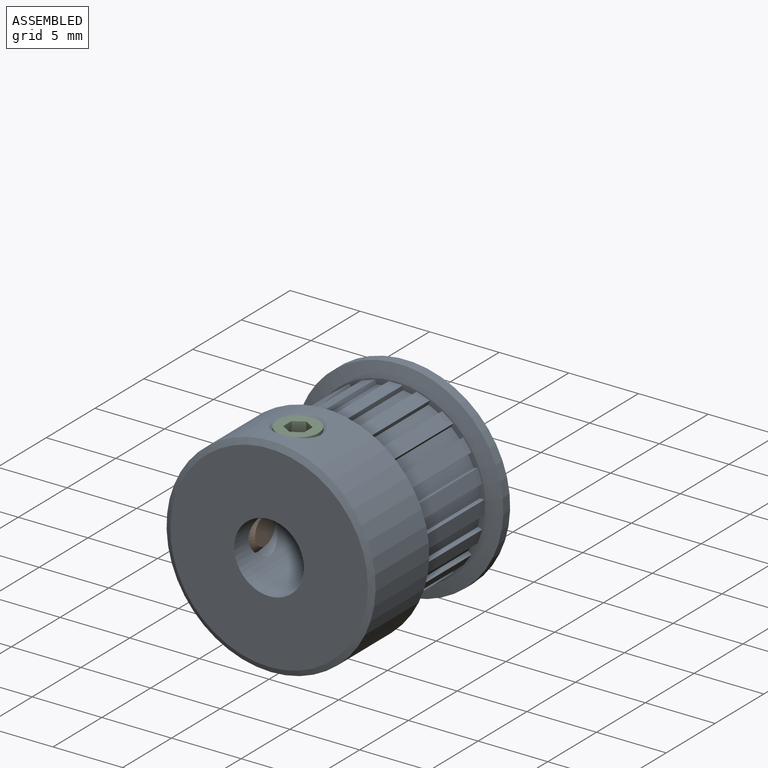
[diagram: assembled view]
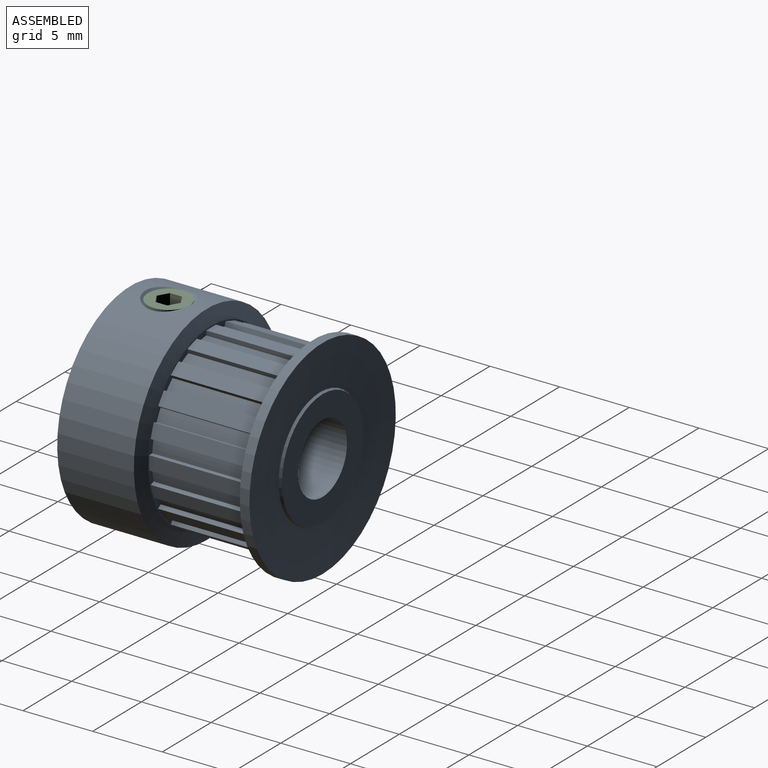
[diagram: assembled view, second angle]
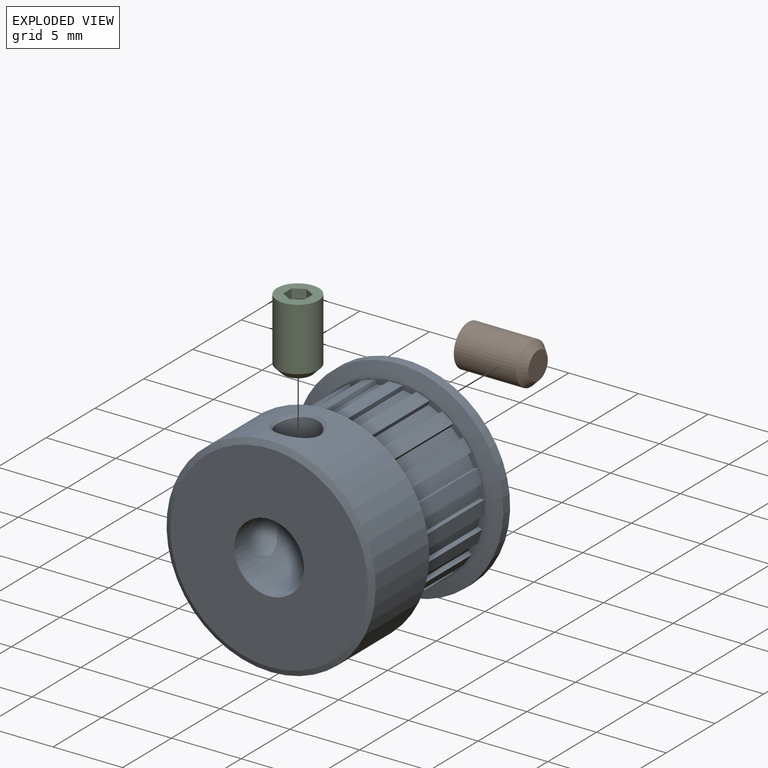
[diagram: exploded view]
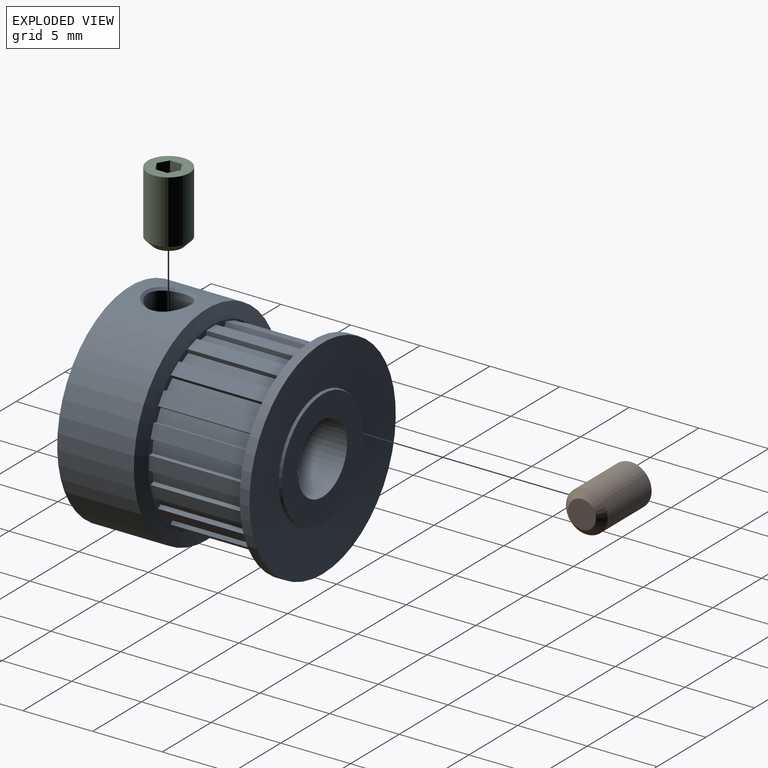
[diagram: exploded view, second angle]
ASSEMBLY  parts=3 mates=2
PART A: 96 faces, bbox 15x14x15 mm
  f0: plane 12.92x12.92mm, normal (0,-1,0), area 9.9mm2, adj f1,f2,f3,f4,f5,f6,f7,f8
  f1: cylinder r=6.05mm len=7mm, axis (0,-1,0), area 6.3mm2, adj f0,f25,f91,f93
  f2: cylinder r=6.05mm len=7mm, axis (0,-1,0), area 6.3mm2, adj f0,f25,f88,f90
  f3: cylinder r=6.05mm len=7mm, axis (0,-1,0), area 6.3mm2, adj f0,f25,f85,f87
  f4: cylinder r=6.05mm len=7mm, axis (0,-1,0), area 6.3mm2, adj f0,f25,f82,f84
  f5: cylinder r=6.05mm len=7mm, axis (0,-1,0), area 6.3mm2, adj f0,f25,f79,f81
  f6: cylinder r=6.05mm len=7mm, axis (0,-1,0), area 6.3mm2, adj f0,f25,f76,f78
  f7: cylinder r=6.05mm len=7mm, axis (0,-1,0), area 6.3mm2, adj f0,f25,f73,f75
  f8: cylinder r=6.05mm len=7mm, axis (0,-1,0), area 6.3mm2, adj f0,f25,f70,f72
  f9: cylinder r=6.05mm len=7mm, axis (0,-1,0), area 6.3mm2, adj f0,f25,f67,f69
  f10: cylinder r=6.05mm len=7mm, axis (0,-1,0), area 6.3mm2, adj f0,f25,f64,f66
  f11: cylinder r=6.05mm len=7mm, axis (0,-1,0), area 6.3mm2, adj f0,f25,f61,f63
  f12: cylinder r=6.05mm len=7mm, axis (0,-1,0), area 6.3mm2, adj f0,f25,f58,f60
  f13: cylinder r=6.05mm len=7mm, axis (0,-1,0), area 6.3mm2, adj f0,f25,f55,f57
  f14: cylinder r=6.05mm len=7mm, axis (0,-1,0), area 6.3mm2, adj f0,f25,f52,f54
  f15: cylinder r=6.05mm len=7mm, axis (0,-1,0), area 6.3mm2, adj f0,f25,f49,f51
  f16: cylinder r=6.05mm len=7mm, axis (0,-1,0), area 6.3mm2, adj f0,f25,f46,f48
  f17: cylinder r=6.05mm len=7mm, axis (0,-1,0), area 6.3mm2, adj f0,f25,f43,f45
  f18: cylinder r=6.05mm len=7mm, axis (0,-1,0), area 6.3mm2, adj f0,f25,f40,f42
  f19: cylinder r=6.05mm len=7mm, axis (0,-1,0), area 6.3mm2, adj f0,f25,f37,f39
  f20: cylinder r=6.05mm len=7mm, axis (0,-1,0), area 6.3mm2, adj f0,f25,f36,f94
  f21: cylinder r=7.5mm len=15mm, axis (0,-1,0), area 241.2mm2, adj f23,f24,f34,f35
  f22: plane 14.18x14.18mm, normal (0,-1,0), area 138.2mm2, adj f23,f31
  f23: cone r=7.5mm half-angle=63.4deg, axis (0,1,0), area 21.1mm2, adj f21,f22
  f24: cone r=7.5mm half-angle=74.3deg, axis (0,-1,0), area 47.4mm2, adj f21,f25
  f25: plane 12.92x12.92mm, normal (0,1,0), area 9.9mm2, adj f1,f2,f3,f4,f5,f6,f7,f8
  f26: cone r=7.5mm half-angle=73.9deg, axis (0,1,0), area 47.5mm2, adj f0,f27
  f27: cylinder r=7.5mm len=15mm, axis (0,-1,0), area 33mm2, adj f26,f28
  f28: cone r=4.25mm half-angle=86.8deg, axis (0,1,0), area 120.2mm2, adj f27,f29
  f29: cone r=4.17mm half-angle=23.1deg, axis (0,-1,0), area 5.3mm2, adj f28,f30
  f30: plane 8.34x8.34mm, normal (0,1,0), area 35mm2, adj f29,f31
  f31: cylinder r=2.5mm len=14mm, axis (0,-1,0), area 205.1mm2, adj f22,f30,f32,f33
  f32: cylinder r=1.5mm len=5.15mm, axis (0,0,-1), area 48.5mm2, adj f31,f34
  f33: cylinder r=1.5mm len=5.15mm, axis (1,0,0), area 48.5mm2, adj f31,f35
  f34: bspline ~3.4x3.33mm, area 2.4mm2, adj f21,f32
  f35: bspline ~3.4x3.33mm, area 2.4mm2, adj f21,f33
  f36: plane 7x0.32mm, normal (-1,0,0), area 2.3mm2, adj f0,f20,f25,f38
  f37: plane 7x0.32mm, normal (1,0,0), area 2.3mm2, adj f0,f19,f25,f38
  f38: plane 7x1mm, normal (0,0,1), area 7mm2, adj f0,f25,f36,f37
  f39: plane 7x0.31mm, normal (-0.95,0,0.31), area 2.3mm2, adj f0,f19,f25,f41
  f40: plane 7x0.31mm, normal (0.95,0,-0.31), area 2.3mm2, adj f0,f18,f25,f41
  f41: plane 7x0.95mm, normal (0.31,0,0.95), area 7mm2, adj f0,f25,f39,f40
  f42: plane 7x0.26mm, normal (-0.81,0,0.59), area 2.3mm2, adj f0,f18,f25,f44
  f43: plane 7x0.26mm, normal (0.81,0,-0.59), area 2.3mm2, adj f0,f17,f25,f44
  f44: plane 7x0.81mm, normal (0.59,0,0.81), area 7mm2, adj f0,f25,f42,f43
  f45: plane 7x0.26mm, normal (-0.59,0,0.81), area 2.3mm2, adj f0,f17,f25,f47
  f46: plane 7x0.26mm, normal (0.59,0,-0.81), area 2.3mm2, adj f0,f16,f25,f47
  f47: plane 7x0.81mm, normal (0.81,0,0.59), area 7mm2, adj f0,f25,f45,f46
  f48: plane 7x0.31mm, normal (-0.31,0,0.95), area 2.3mm2, adj f0,f16,f25,f50
  f49: plane 7x0.31mm, normal (0.31,0,-0.95), area 2.3mm2, adj f0,f15,f25,f50
  f50: plane 7x0.95mm, normal (0.95,0,0.31), area 7mm2, adj f0,f25,f48,f49
  f51: plane 7x0.32mm, normal (0,0,1), area 2.3mm2, adj f0,f15,f25,f53
  f52: plane 7x0.32mm, normal (0,0,-1), area 2.3mm2, adj f0,f14,f25,f53
  f53: plane 7x1mm, normal (1,0,0), area 7mm2, adj f0,f25,f51,f52
  f54: plane 7x0.31mm, normal (0.31,0,0.95), area 2.3mm2, adj f0,f14,f25,f56
  f55: plane 7x0.31mm, normal (-0.31,0,-0.95), area 2.3mm2, adj f0,f13,f25,f56
  f56: plane 7x0.95mm, normal (0.95,0,-0.31), area 7mm2, adj f0,f25,f54,f55
  f57: plane 7x0.26mm, normal (0.59,0,0.81), area 2.3mm2, adj f0,f13,f25,f59
  f58: plane 7x0.26mm, normal (-0.59,0,-0.81), area 2.3mm2, adj f0,f12,f25,f59
  f59: plane 7x0.81mm, normal (0.81,0,-0.59), area 7mm2, adj f0,f25,f57,f58
  f60: plane 7x0.26mm, normal (0.81,0,0.59), area 2.3mm2, adj f0,f12,f25,f62
  f61: plane 7x0.26mm, normal (-0.81,0,-0.59), area 2.3mm2, adj f0,f11,f25,f62
  f62: plane 7x0.81mm, normal (0.59,0,-0.81), area 7mm2, adj f0,f25,f60,f61
  f63: plane 7x0.31mm, normal (0.95,0,0.31), area 2.3mm2, adj f0,f11,f25,f65
  f64: plane 7x0.31mm, normal (-0.95,0,-0.31), area 2.3mm2, adj f0,f10,f25,f65
  f65: plane 7x0.95mm, normal (0.31,0,-0.95), area 7mm2, adj f0,f25,f63,f64
  f66: plane 7x0.32mm, normal (1,0,0), area 2.3mm2, adj f0,f10,f25,f68
  f67: plane 7x0.32mm, normal (-1,0,0), area 2.3mm2, adj f0,f9,f25,f68
  f68: plane 7x1mm, normal (0,0,-1), area 7mm2, adj f0,f25,f66,f67
  f69: plane 7x0.31mm, normal (0.95,0,-0.31), area 2.3mm2, adj f0,f9,f25,f71
  f70: plane 7x0.31mm, normal (-0.95,0,0.31), area 2.3mm2, adj f0,f8,f25,f71
  f71: plane 7x0.95mm, normal (-0.31,0,-0.95), area 7mm2, adj f0,f25,f69,f70
  f72: plane 7x0.26mm, normal (0.81,0,-0.59), area 2.3mm2, adj f0,f8,f25,f74
  f73: plane 7x0.26mm, normal (-0.81,0,0.59), area 2.3mm2, adj f0,f7,f25,f74
  f74: plane 7x0.81mm, normal (-0.59,0,-0.81), area 7mm2, adj f0,f25,f72,f73
  f75: plane 7x0.26mm, normal (0.59,0,-0.81), area 2.3mm2, adj f0,f7,f25,f77
  f76: plane 7x0.26mm, normal (-0.59,0,0.81), area 2.3mm2, adj f0,f6,f25,f77
  f77: plane 7x0.81mm, normal (-0.81,0,-0.59), area 7mm2, adj f0,f25,f75,f76
  f78: plane 7x0.31mm, normal (0.31,0,-0.95), area 2.3mm2, adj f0,f6,f25,f80
  f79: plane 7x0.31mm, normal (-0.31,0,0.95), area 2.3mm2, adj f0,f5,f25,f80
  f80: plane 7x0.95mm, normal (-0.95,0,-0.31), area 7mm2, adj f0,f25,f78,f79
  f81: plane 7x0.32mm, normal (0,0,-1), area 2.3mm2, adj f0,f5,f25,f83
  f82: plane 7x0.32mm, normal (0,0,1), area 2.3mm2, adj f0,f4,f25,f83
  f83: plane 7x1mm, normal (-1,0,0), area 7mm2, adj f0,f25,f81,f82
  f84: plane 7x0.31mm, normal (-0.31,0,-0.95), area 2.3mm2, adj f0,f4,f25,f86
  f85: plane 7x0.31mm, normal (0.31,0,0.95), area 2.3mm2, adj f0,f3,f25,f86
  f86: plane 7x0.95mm, normal (-0.95,0,0.31), area 7mm2, adj f0,f25,f84,f85
  f87: plane 7x0.26mm, normal (-0.59,0,-0.81), area 2.3mm2, adj f0,f3,f25,f89
  f88: plane 7x0.26mm, normal (0.59,0,0.81), area 2.3mm2, adj f0,f2,f25,f89
  f89: plane 7x0.81mm, normal (-0.81,0,0.59), area 7mm2, adj f0,f25,f87,f88
  f90: plane 7x0.26mm, normal (-0.81,0,-0.59), area 2.3mm2, adj f0,f2,f25,f92
  f91: plane 7x0.26mm, normal (0.81,0,0.59), area 2.3mm2, adj f0,f1,f25,f92
  f92: plane 7x0.81mm, normal (-0.59,0,0.81), area 7mm2, adj f0,f25,f90,f91
  f93: plane 7x0.31mm, normal (-0.95,0,-0.31), area 2.3mm2, adj f0,f1,f25,f95
  f94: plane 7x0.31mm, normal (0.95,0,0.31), area 2.3mm2, adj f0,f20,f25,f95
  f95: plane 7x0.95mm, normal (-0.31,0,0.95), area 7mm2, adj f0,f25,f93,f94
PART B: 11 faces, bbox 3x3x5 mm
  f0: plane 3x3mm, normal (0,0,1), area 5.1mm2, adj f1,f3,f4,f5,f6,f7,f8
  f1: cylinder r=1.5mm len=4.5mm, axis (0,0,-1), area 42.4mm2, adj f0,f10
  f2: plane 2x2mm, normal (0,0,-1), area 3.1mm2, adj f10
  f3: plane 1.5x0.87mm, normal (-1,0,0), area 1.3mm2, adj f0,f4,f8,f9
  f4: plane 1.5x0.75mm, normal (-0.5,-0.87,0), area 1.3mm2, adj f0,f3,f5,f9
  f5: plane 1.5x0.75mm, normal (0.5,-0.87,0), area 1.3mm2, adj f0,f4,f6,f9
  f6: plane 1.5x0.87mm, normal (1,0,0), area 1.3mm2, adj f0,f5,f7,f9
  f7: plane 1.5x0.75mm, normal (0.5,0.87,0), area 1.3mm2, adj f0,f6,f8,f9
  f8: plane 1.5x0.75mm, normal (-0.5,0.87,0), area 1.3mm2, adj f0,f3,f7,f9
  f9: plane 1.73x1.5mm, normal (0,0,1), area 1.9mm2, adj f3,f4,f5,f6,f7,f8
  f10: cone r=1.5mm half-angle=45deg, axis (0,0,1), area 5.6mm2, adj f1,f2
PART C: same geometry as B
PLACE A at identity
PLACE B rot(axis=(-0.58,-0.58,0.58),120deg) t=(-2.37,2.96,0)mm
PLACE C t=(0,2.96,2.37)mm
MATE fastened C.f1 <-> A.f32  axis (0,0,-1) through (0,2.96,7.37)mm
MATE fastened B.f1 <-> A.f33  axis (1,0,0) through (-7.37,2.96,0)mm
